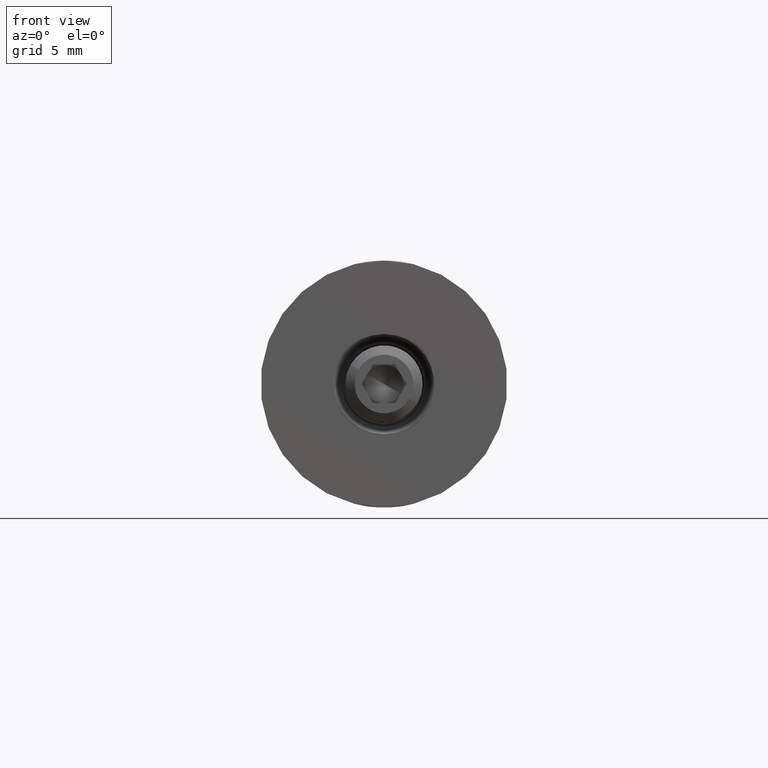
[diagram: clean part render]
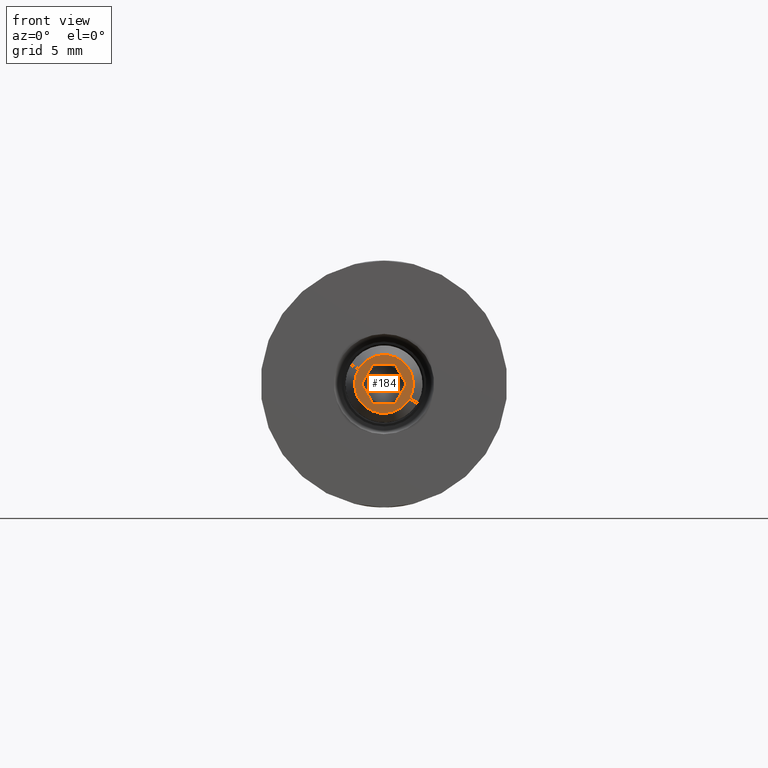
[diagram: same view with one face highlighted and labeled with its STEP entity id]
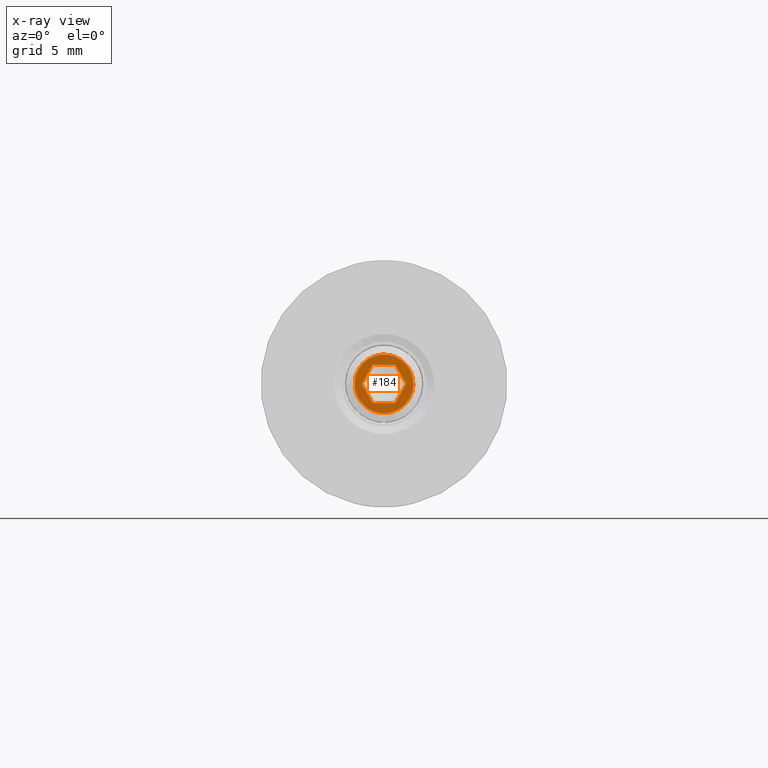
[diagram: x-ray of the same camera — body ghosted, the highlighted face saturated]
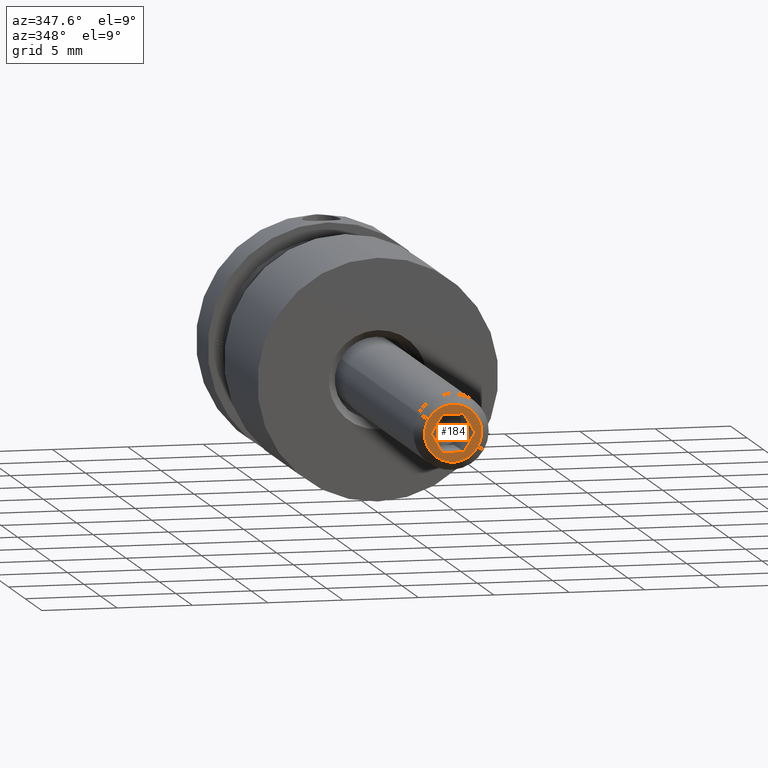
[diagram: same view with one face highlighted and labeled with its STEP entity id]
A machine part, front view. The second image highlights one B-rep face of the part: STEP entity #184.
The next image is the same camera in x-ray: the body ghosted, the highlighted face saturated — about 0% of this face is hidden behind the body in this view.
A second angle (auxiliary view) of the same face is appended — the face is thin or edge-on in the first view.
In plain terms, the highlighted planar face has unit normal (-0, -1, 0).
Its self-contained STEP definition (entity closure, byte-faithful):
#95 = EDGE_CURVE ( 'NONE', #14290, #1766, #12904, .T. ) ;
#126 = VECTOR ( 'NONE', #6280, 1000.000000000000227 ) ;
#184 = ADVANCED_FACE ( 'NONE', ( #9936, #7192 ), #16728, .T. ) ;
#610 = ORIENTED_EDGE ( 'NONE', *, *, #10675, .F. ) ;
#868 = CARTESIAN_POINT ( 'NONE',  ( 40.00000000000000000, 1.443375672974065660, -7.062204805578421293E-17 ) ) ;
#910 = ORIENTED_EDGE ( 'NONE', *, *, #1267, .T. ) ;
#1267 = EDGE_CURVE ( 'NONE', #1766, #14290, #15368, .T. ) ;
#1447 = CARTESIAN_POINT ( 'NONE',  ( 40.00000000000000000, 0.7216878364870332740, 1.250000000000000444 ) ) ;
#1488 = DIRECTION ( 'NONE',  ( 0.000000000000000000, 1.000000000000000000, -3.004629197474314118E-16 ) ) ;
#1583 = DIRECTION ( 'NONE',  ( 0.000000000000000000, -0.5000000000000001110, -0.8660254037844387076 ) ) ;
#1766 = VERTEX_POINT ( 'NONE', #11771 ) ;
#1783 = CARTESIAN_POINT ( 'NONE',  ( 40.00000000000000000, -0.7216878364870321638, 1.250000000000000444 ) ) ;
#1996 = DIRECTION ( 'NONE',  ( 0.000000000000000000, 0.000000000000000000, -1.000000000000000000 ) ) ;
#2135 = ORIENTED_EDGE ( 'NONE', *, *, #7966, .F. ) ;
#2653 = VERTEX_POINT ( 'NONE', #1783 ) ;
#2857 = DIRECTION ( 'NONE',  ( 0.000000000000000000, -1.000000000000000000, 0.000000000000000000 ) ) ;
#3009 = DIRECTION ( 'NONE',  ( 1.000000000000000000, 0.000000000000000000, 0.000000000000000000 ) ) ;
#3062 = CARTESIAN_POINT ( 'NONE',  ( 40.00000000000000000, -0.7216878364870328300, -1.249999999999998890 ) ) ;
#3495 = LINE ( 'NONE', #16284, #14239 ) ;
#3654 = LINE ( 'NONE', #3795, #14592 ) ;
#3795 = CARTESIAN_POINT ( 'NONE',  ( 40.00000000000000000, 1.443375672974065660, -7.062204805578421293E-17 ) ) ;
#4196 = ORIENTED_EDGE ( 'NONE', *, *, #8358, .F. ) ;
#4306 = LINE ( 'NONE', #7992, #126 ) ;
#4421 = AXIS2_PLACEMENT_3D ( 'NONE', #16526, #3009, #11061 ) ;
#5141 = VERTEX_POINT ( 'NONE', #868 ) ;
#5961 = CARTESIAN_POINT ( 'NONE',  ( 40.00000000000000000, 0.000000000000000000, 0.000000000000000000 ) ) ;
#6280 = DIRECTION ( 'NONE',  ( 0.000000000000000000, 0.4999999999999998890, 0.8660254037844385966 ) ) ;
#7192 = FACE_OUTER_BOUND ( 'NONE', #8975, .T. ) ;
#7204 = DIRECTION ( 'NONE',  ( 1.000000000000000000, 0.000000000000000000, 0.000000000000000000 ) ) ;
#7498 = LINE ( 'NONE', #12185, #10020 ) ;
#7966 = EDGE_CURVE ( 'NONE', #10213, #13158, #7498, .T. ) ;
#7992 = CARTESIAN_POINT ( 'NONE',  ( 40.00000000000000000, 0.7216878364870338292, -1.249999999999999334 ) ) ;
#8013 = VERTEX_POINT ( 'NONE', #11258 ) ;
#8358 = EDGE_CURVE ( 'NONE', #2653, #8013, #3495, .T. ) ;
#8703 = LINE ( 'NONE', #12745, #16670 ) ;
#8831 = EDGE_CURVE ( 'NONE', #13158, #5141, #4306, .T. ) ;
#8975 = EDGE_LOOP ( 'NONE', ( #12444, #910 ) ) ;
#9629 = DIRECTION ( 'NONE',  ( 1.000000000000000000, 0.000000000000000000, 0.000000000000000000 ) ) ;
#9753 = DIRECTION ( 'NONE',  ( 0.000000000000000000, 0.000000000000000000, -1.000000000000000000 ) ) ;
#9921 = ORIENTED_EDGE ( 'NONE', *, *, #12527, .F. ) ;
#9936 = FACE_BOUND ( 'NONE', #13501, .T. ) ;
#10020 = VECTOR ( 'NONE', #1488, 1000.000000000000000 ) ;
#10213 = VERTEX_POINT ( 'NONE', #3062 ) ;
#10221 = ORIENTED_EDGE ( 'NONE', *, *, #8831, .F. ) ;
#10675 = EDGE_CURVE ( 'NONE', #13859, #2653, #15893, .T. ) ;
#11061 = DIRECTION ( 'NONE',  ( 0.000000000000000000, 0.000000000000000000, -1.000000000000000000 ) ) ;
#11095 = CARTESIAN_POINT ( 'NONE',  ( 40.00000000000000000, 0.000000000000000000, 0.000000000000000000 ) ) ;
#11258 = CARTESIAN_POINT ( 'NONE',  ( 40.00000000000000000, -1.443375672974064550, 7.589415207398531038E-16 ) ) ;
#11714 = EDGE_CURVE ( 'NONE', #5141, #13859, #3654, .T. ) ;
#11771 = CARTESIAN_POINT ( 'NONE',  ( 40.00000000000000000, 2.694222958124175034E-16, -1.899999999999997247 ) ) ;
#11813 = DIRECTION ( 'NONE',  ( 0.000000000000000000, -0.4999999999999999445, 0.8660254037844387076 ) ) ;
#12185 = CARTESIAN_POINT ( 'NONE',  ( 40.00000000000000000, -0.7216878364870328300, -1.249999999999998890 ) ) ;
#12444 = ORIENTED_EDGE ( 'NONE', *, *, #95, .T. ) ;
#12527 = EDGE_CURVE ( 'NONE', #8013, #10213, #8703, .T. ) ;
#12745 = CARTESIAN_POINT ( 'NONE',  ( 40.00000000000000000, -1.443375672974064328, 6.409875621278536194E-16 ) ) ;
#12900 = AXIS2_PLACEMENT_3D ( 'NONE', #11095, #9629, #9753 ) ;
#12904 = CIRCLE ( 'NONE', #12900, 1.899999999999997247 ) ;
#13158 = VERTEX_POINT ( 'NONE', #16891 ) ;
#13457 = ORIENTED_EDGE ( 'NONE', *, *, #11714, .F. ) ;
#13501 = EDGE_LOOP ( 'NONE', ( #4196, #610, #13457, #10221, #2135, #9921 ) ) ;
#13859 = VERTEX_POINT ( 'NONE', #14779 ) ;
#13965 = CARTESIAN_POINT ( 'NONE',  ( 40.00000000000000000, 0.000000000000000000, 1.899999999999997247 ) ) ;
#14239 = VECTOR ( 'NONE', #1583, 999.9999999999998863 ) ;
#14290 = VERTEX_POINT ( 'NONE', #13965 ) ;
#14592 = VECTOR ( 'NONE', #11813, 1000.000000000000000 ) ;
#14677 = AXIS2_PLACEMENT_3D ( 'NONE', #5961, #7204, #1996 ) ;
#14779 = CARTESIAN_POINT ( 'NONE',  ( 40.00000000000000000, 0.7216878364870332740, 1.250000000000000444 ) ) ;
#15368 = CIRCLE ( 'NONE', #4421, 1.899999999999997247 ) ;
#15441 = DIRECTION ( 'NONE',  ( 0.000000000000000000, 0.4999999999999997224, -0.8660254037844388186 ) ) ;
#15893 = LINE ( 'NONE', #1447, #16083 ) ;
#16083 = VECTOR ( 'NONE', #2857, 1000.000000000000000 ) ;
#16284 = CARTESIAN_POINT ( 'NONE',  ( 40.00000000000000000, -0.7216878364870321638, 1.250000000000000444 ) ) ;
#16526 = CARTESIAN_POINT ( 'NONE',  ( 40.00000000000000000, 0.000000000000000000, 0.000000000000000000 ) ) ;
#16670 = VECTOR ( 'NONE', #15441, 1000.000000000000000 ) ;
#16728 = PLANE ( 'NONE',  #14677 ) ;
#16891 = CARTESIAN_POINT ( 'NONE',  ( 40.00000000000000000, 0.7216878364870338292, -1.249999999999999334 ) ) ;